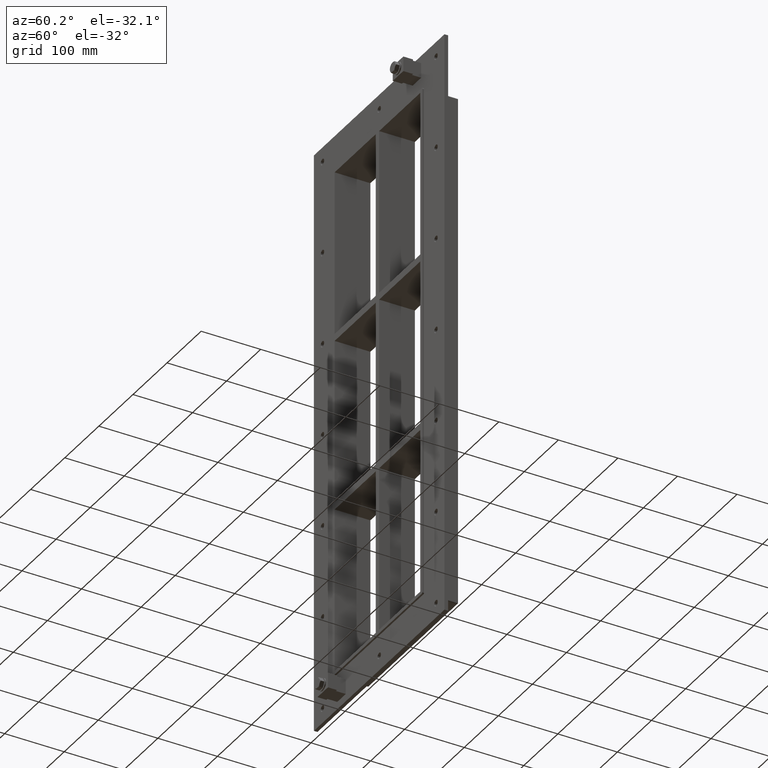
[diagram: clean part render]
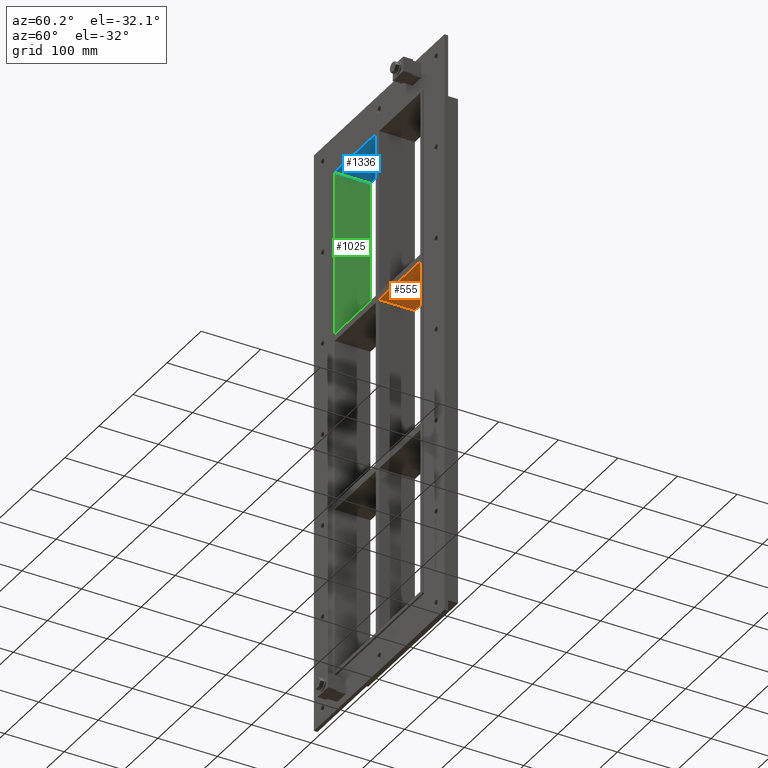
[diagram: same view with three faces highlighted in distinct colors, each labeled with its STEP entity id]
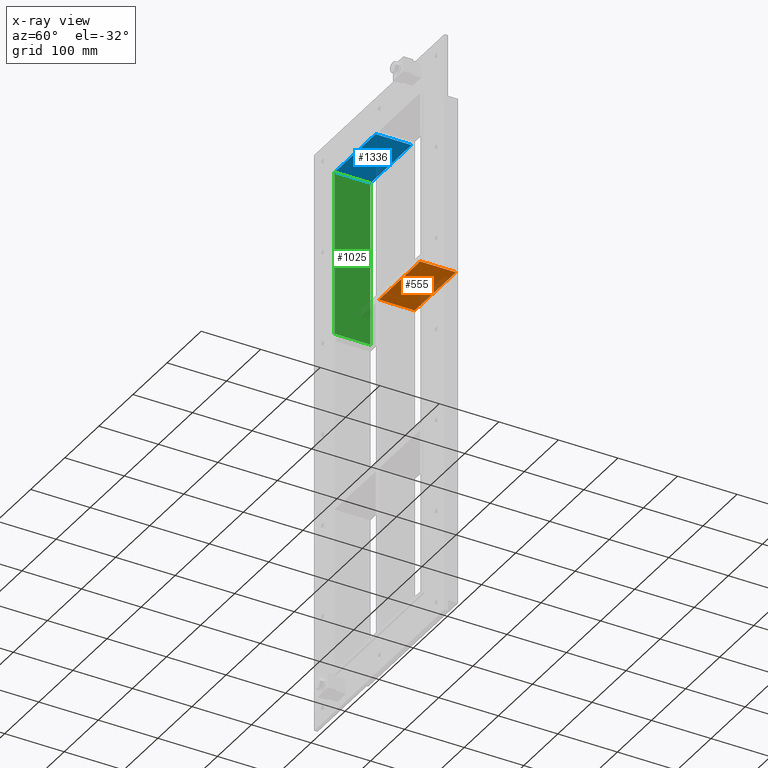
[diagram: x-ray of the same camera — body ghosted, the three highlighted faces saturated]
A machine part, auxiliary view with three faces highlighted in distinct colors.
The next image is the same camera in x-ray (body ghosted, the three faces saturated) — at least one of them is partly hidden behind the body in this view.
Their STEP definitions:

[orange] entity #555 — the highlighted planar face has unit normal (0, 0, -1).
#516=CARTESIAN_POINT('',(125.49999999999272,-3.0,138.99999999998903));
#517=DIRECTION('',(0.0,0.0,-1.0));
#518=DIRECTION('',(-1.0,0.0,0.0));
#519=AXIS2_PLACEMENT_3D('',#516,#517,#518);
#520=PLANE('',#519);
#521=CARTESIAN_POINT('',(5.0,57.0,138.99999999998875));
#522=VERTEX_POINT('',#521);
#523=CARTESIAN_POINT('',(5.0,-3.0,138.99999999998872));
#524=VERTEX_POINT('',#523);
#525=CARTESIAN_POINT('',(5.0,57.0,138.99999999998875));
#526=DIRECTION('',(0.0,-1.0,0.0));
#527=VECTOR('',#526,60.0);
#528=LINE('',#525,#527);
#529=EDGE_CURVE('',#522,#524,#528,.T.);
#530=ORIENTED_EDGE('',*,*,#529,.F.);
#531=CARTESIAN_POINT('',(125.49999999999274,57.0,138.99999999998903));
#532=VERTEX_POINT('',#531);
#533=CARTESIAN_POINT('',(125.49999999999272,57.0,138.99999999998903));
#534=DIRECTION('',(-1.0,0.0,0.0));
#535=VECTOR('',#534,120.49999999999272);
#536=LINE('',#533,#535);
#537=EDGE_CURVE('',#532,#522,#536,.T.);
#538=ORIENTED_EDGE('',*,*,#537,.F.);
#539=CARTESIAN_POINT('',(125.49999999999272,-3.0,138.99999999998903));
#540=VERTEX_POINT('',#539);
#541=CARTESIAN_POINT('',(125.5,-3.0,138.99999999998903));
#542=DIRECTION('',(0.0,1.0,0.0));
#543=VECTOR('',#542,60.000000000000007);
#544=LINE('',#541,#543);
#545=EDGE_CURVE('',#540,#532,#544,.T.);
#546=ORIENTED_EDGE('',*,*,#545,.F.);
#547=CARTESIAN_POINT('',(125.49999999999272,-3.0,138.99999999998903));
#548=DIRECTION('',(-1.0,0.0,0.0));
#549=VECTOR('',#548,120.49999999999272);
#550=LINE('',#547,#549);
#551=EDGE_CURVE('',#540,#524,#550,.T.);
#552=ORIENTED_EDGE('',*,*,#551,.T.);
#553=EDGE_LOOP('',(#530,#538,#546,#552));
#554=FACE_OUTER_BOUND('',#553,.T.);
#555=ADVANCED_FACE('',(#554),#520,.T.);

[blue] entity #1336 — the highlighted planar face has unit normal (0, 0, 1).
#775=CARTESIAN_POINT('',(-5.000000000000462,-3.0,429.00000000000006));
#776=VERTEX_POINT('',#775);
#783=CARTESIAN_POINT('',(-5.000000000000462,57.0,429.00000000000006));
#784=VERTEX_POINT('',#783);
#785=CARTESIAN_POINT('',(-5.000000000000462,57.000000000000007,429.00000000000011));
#786=DIRECTION('',(0.0,-1.0,0.0));
#787=VECTOR('',#786,60.000000000000007);
#788=LINE('',#785,#787);
#789=EDGE_CURVE('',#784,#776,#788,.T.);
#1001=CARTESIAN_POINT('',(-125.5,57.0,429.00000000000006));
#1002=VERTEX_POINT('',#1001);
#1009=CARTESIAN_POINT('',(-125.5,-3.0,429.00000000000006));
#1010=VERTEX_POINT('',#1009);
#1011=CARTESIAN_POINT('',(-125.5,-3.0,429.00000000000011));
#1012=DIRECTION('',(0.0,1.0,0.0));
#1013=VECTOR('',#1012,60.0);
#1014=LINE('',#1011,#1013);
#1015=EDGE_CURVE('',#1010,#1002,#1014,.T.);
#1144=CARTESIAN_POINT('',(-5.000000000000462,57.0,429.00000000000011));
#1145=DIRECTION('',(-1.0,0.0,0.0));
#1146=VECTOR('',#1145,120.49999999999955);
#1147=LINE('',#1144,#1146);
#1148=EDGE_CURVE('',#784,#1002,#1147,.T.);
#1320=CARTESIAN_POINT('',(-125.5,0.0,429.00000000000011));
#1321=DIRECTION('',(0.0,0.0,1.0));
#1322=DIRECTION('',(1.0,0.0,0.0));
#1323=AXIS2_PLACEMENT_3D('',#1320,#1321,#1322);
#1324=PLANE('',#1323);
#1325=ORIENTED_EDGE('',*,*,#789,.T.);
#1326=CARTESIAN_POINT('',(-125.5,-3.0,429.00000000000011));
#1327=DIRECTION('',(1.0,0.0,0.0));
#1328=VECTOR('',#1327,120.49999999999955);
#1329=LINE('',#1326,#1328);
#1330=EDGE_CURVE('',#1010,#776,#1329,.T.);
#1331=ORIENTED_EDGE('',*,*,#1330,.F.);
#1332=ORIENTED_EDGE('',*,*,#1015,.T.);
#1333=ORIENTED_EDGE('',*,*,#1148,.F.);
#1334=EDGE_LOOP('',(#1325,#1331,#1332,#1333));
#1335=FACE_OUTER_BOUND('',#1334,.T.);
#1336=ADVANCED_FACE('',(#1335),#1324,.F.);

[green] entity #1025 — the highlighted planar face has unit normal (-1, 0, 0).
#611=CARTESIAN_POINT('',(-125.49999999999875,57.0,151.00000000000023));
#612=VERTEX_POINT('',#611);
#619=CARTESIAN_POINT('',(-125.49999999999875,-3.0,151.00000000000023));
#620=VERTEX_POINT('',#619);
#621=CARTESIAN_POINT('',(-125.5,-3.0,151.00000000000023));
#622=DIRECTION('',(0.0,1.0,0.0));
#623=VECTOR('',#622,60.000000000000007);
#624=LINE('',#621,#623);
#625=EDGE_CURVE('',#620,#612,#624,.T.);
#995=CARTESIAN_POINT('',(-125.5,0.0,-429.00000000000006));
#996=DIRECTION('',(-1.0,0.0,0.0));
#997=DIRECTION('',(0.0,0.0,1.0));
#998=AXIS2_PLACEMENT_3D('',#995,#996,#997);
#999=PLANE('',#998);
#1000=ORIENTED_EDGE('',*,*,#625,.T.);
#1001=CARTESIAN_POINT('',(-125.5,57.0,429.00000000000006));
#1002=VERTEX_POINT('',#1001);
#1003=CARTESIAN_POINT('',(-125.5,57.0,429.00000000000011));
#1004=DIRECTION('',(0.0,0.0,-1.0));
#1005=VECTOR('',#1004,277.99999999999989);
#1006=LINE('',#1003,#1005);
#1007=EDGE_CURVE('',#1002,#612,#1006,.T.);
#1008=ORIENTED_EDGE('',*,*,#1007,.F.);
#1009=CARTESIAN_POINT('',(-125.5,-3.0,429.00000000000006));
#1010=VERTEX_POINT('',#1009);
#1011=CARTESIAN_POINT('',(-125.5,-3.0,429.00000000000011));
#1012=DIRECTION('',(0.0,1.0,0.0));
#1013=VECTOR('',#1012,60.0);
#1014=LINE('',#1011,#1013);
#1015=EDGE_CURVE('',#1010,#1002,#1014,.T.);
#1016=ORIENTED_EDGE('',*,*,#1015,.F.);
#1017=CARTESIAN_POINT('',(-125.5,-3.0,151.0000000000002));
#1018=DIRECTION('',(0.0,0.0,1.0));
#1019=VECTOR('',#1018,277.99999999999989);
#1020=LINE('',#1017,#1019);
#1021=EDGE_CURVE('',#620,#1010,#1020,.T.);
#1022=ORIENTED_EDGE('',*,*,#1021,.F.);
#1023=EDGE_LOOP('',(#1000,#1008,#1016,#1022));
#1024=FACE_OUTER_BOUND('',#1023,.T.);
#1025=ADVANCED_FACE('',(#1024),#999,.F.);